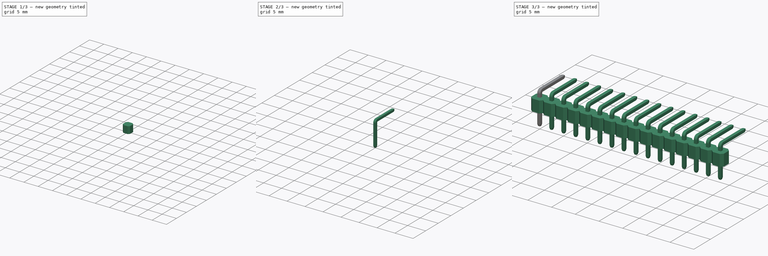
[diagram: build sequence overview — one tinted view per stage of 3, left to right]
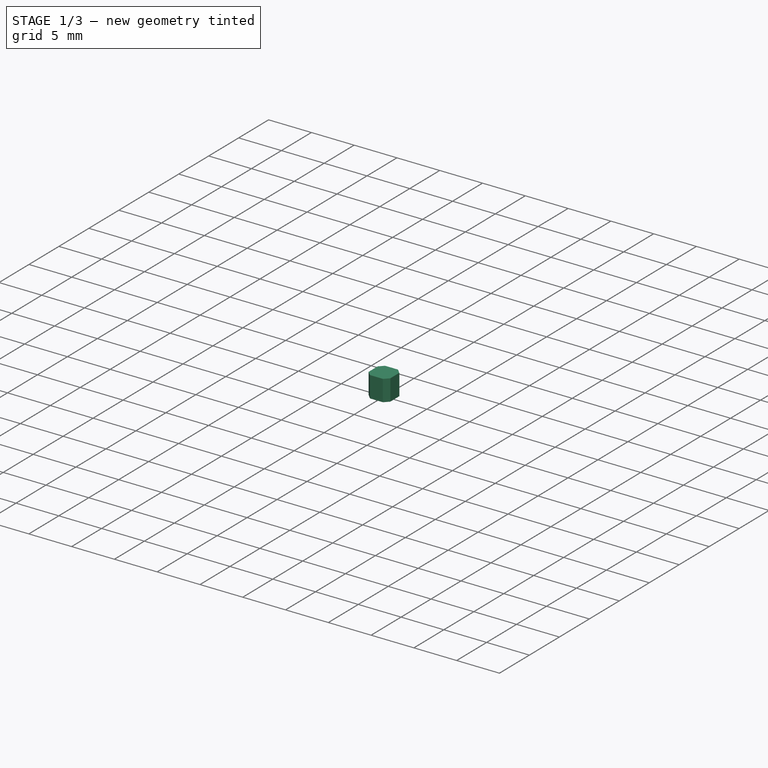
[diagram: stage 1 of 3 — iso view after this stage's code; geometry added in this stage tinted green]
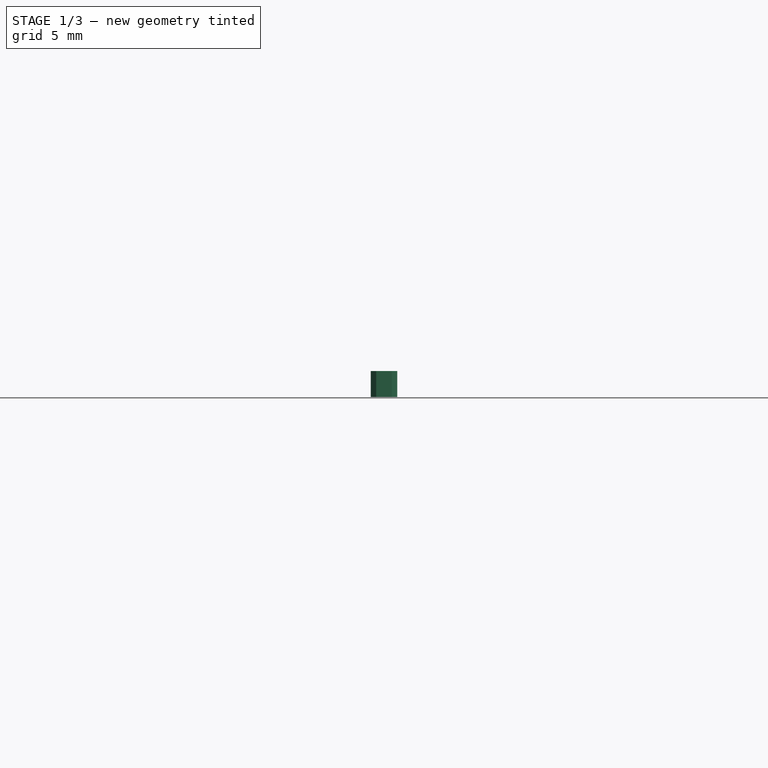
[diagram: stage 1 of 3 — front view after this stage's code; geometry added in this stage tinted green]
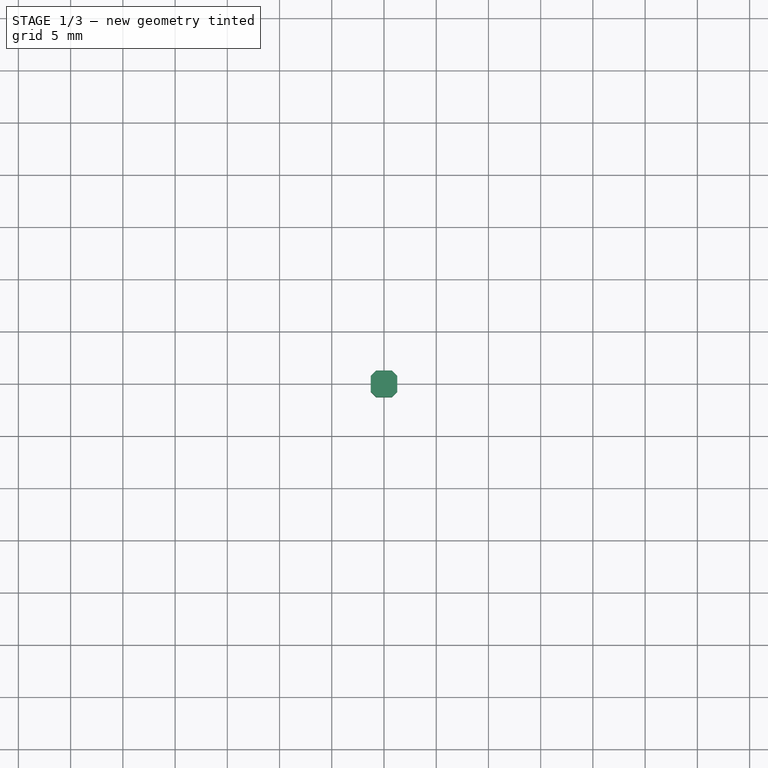
[diagram: stage 1 of 3 — top view after this stage's code; geometry added in this stage tinted green]
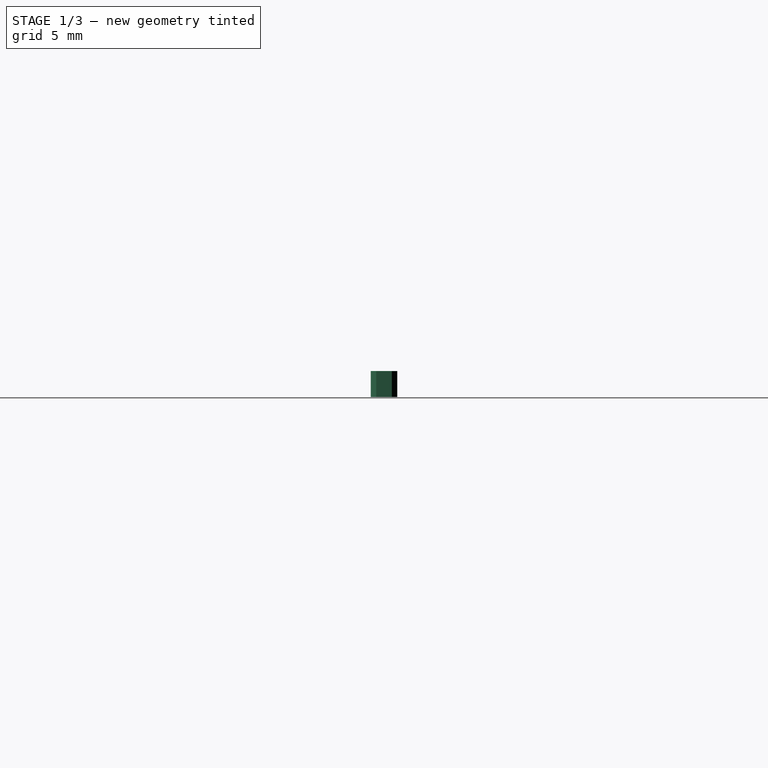
[diagram: stage 1 of 3 — right view after this stage's code; geometry added in this stage tinted green]
FCSTD DOCUMENT  (FreeCAD 1.0R39285 (Git))
Label: header_R1
License: All rights reserved
LicenseURL: https://en.wikipedia.org/wiki/All_rights_reserved
objects: Sketcher::SketchObject×4, PartDesign::Chamfer×2, PartDesign::Fillet×2, PartDesign::Body×2, PartDesign::Pad×1, PartDesign::SubShapeBinder×1, PartDesign::AdditivePipe×1, App::Part×1, Part::FeaturePython×1
note: 29 computed .brp shape members not serialized (recipe doc carries the construction recipe); baked Part::Feature solids carry a one-line shape summary decoded from their .brp

FEATURE [Sketcher::SketchObject] Sketch
  ArcFitTolerance = 1e-06
  AttachmentSupport = -> [XY_Plane]
  FullyConstrained = true
  MakeInternals = false
  MapMode = 5
  sketch-geometry (17):
    g0: LineSegment StartX=-0.75 StartY=-1.27 StartZ=0 EndX=0.75 EndY=-1.27 EndZ=0
    g1: LineSegment StartX=1.27 StartY=-0.75 StartZ=0 EndX=1.27 EndY=0.75 EndZ=0
    g2: LineSegment StartX=0.75 StartY=1.27 StartZ=0 EndX=-0.75 EndY=1.27 EndZ=0
    g3: LineSegment StartX=-1.27 StartY=0.75 StartZ=0 EndX=-1.27 EndY=-0.75 EndZ=0
    g4: GeomPoint [constr] X=0 Y=0 Z=0
    g5: ArcOfCircle [constr] CenterX=-0.75 CenterY=0.75 CenterZ=0 NormalX=0 NormalY=0 NormalZ=1 AngleXU=0 Radius=0.52 StartAngle=1.5708 EndAngle=3.14159
    g6: GeomPoint [constr] X=-1.27 Y=1.27 Z=0
    g7: LineSegment StartX=-0.75 StartY=1.27 StartZ=0 EndX=-1.27 EndY=0.75 EndZ=0
    g8: ArcOfCircle [constr] CenterX=0.75 CenterY=0.75 CenterZ=0 NormalX=0 NormalY=0 NormalZ=1 AngleXU=0 Radius=0.52 StartAngle=3.9294e-12 EndAngle=1.5708
    g9: GeomPoint [constr] X=1.27 Y=1.27 Z=0
    g10: LineSegment StartX=1.27 StartY=0.75 StartZ=0 EndX=0.75 EndY=1.27 EndZ=0
    g11: ArcOfCircle [constr] CenterX=0.75 CenterY=-0.75 CenterZ=0 NormalX=0 NormalY=0 NormalZ=1 AngleXU=0 Radius=0.52 StartAngle=4.71239 EndAngle=6.28319
    g12: GeomPoint [constr] X=1.27 Y=-1.27 Z=0
    g13: LineSegment StartX=0.75 StartY=-1.27 StartZ=0 EndX=1.27 EndY=-0.75 EndZ=0
    g14: ArcOfCircle [constr] CenterX=-0.75 CenterY=-0.75 CenterZ=0 NormalX=0 NormalY=0 NormalZ=1 AngleXU=0 Radius=0.52 StartAngle=3.14159 EndAngle=4.71239
    g15: GeomPoint [constr] X=-1.27 Y=-1.27 Z=0
    g16: LineSegment StartX=-1.27 StartY=-0.75 StartZ=0 EndX=-0.75 EndY=-1.27 EndZ=0
  constraints (36):
    c: Horizontal(g0)
    c: Horizontal(g2)
    c: Vertical(g1)
    c: Vertical(g3)
    c: Symmetric(g9,g15,g4)
    c: Distance(g12,g15) = 2.54
    c: Distance(g15,g6) = 2.54
    c: Coincident(g4,g-1)
    c: PointOnObject(g6,g3)
    c: PointOnObject(g6,g2)
    c: Tangent(g3,g5) = -1.5708
    c: Tangent(g2,g5) = -1.5708
    c: Coincident(g7,g3)
    c: Coincident(g7,g2)
    c: PointOnObject(g9,g2)
    c: PointOnObject(g9,g1)
    c: Tangent(g2,g8) = -1.5708
    c: Tangent(g1,g8) = -1.5708
    c: Coincident(g10,g2)
    c: Coincident(g10,g1)
    c: PointOnObject(g12,g1)
    c: PointOnObject(g12,g0)
    c: Tangent(g1,g11) = -1.5708
    c: Tangent(g0,g11) = -1.5708
    c: Coincident(g13,g1)
    c: Coincident(g13,g0)
    c: PointOnObject(g15,g3)
    c: PointOnObject(g15,g0)
    c: Tangent(g3,g14) = -1.5708
    c: Tangent(g0,g14) = -1.5708
    c: Coincident(g16,g3)
    c: Coincident(g16,g0)
    c: Equal(g16,g7)
    c: Equal(g7,g10)
    c: Equal(g10,g13)
    c: DistanceY(g1,g1) = 1.5
FEATURE [PartDesign::Pad] Pad
  Direction = (0,0,1)
  Length = 2.5
  Length2 = 10
  Profile = -> Sketch
  ReferenceAxis = -> Sketch [N_Axis]
  Refine = true
  Suppressed = false
  Type = 0
FEATURE [PartDesign::Body] Body001  label="Conductor"
  AllowCompound = false
  Group = -> [Sketch002,Binder,Sketch003,AdditivePipe,Chamfer,Chamfer001,Fillet]
  Origin = -> Origin001
  Tip = -> Fillet
FEATURE [PartDesign::Fillet] Fillet001
  Base = -> Pad [Edge4,Edge7,Edge10,Edge13,Edge16,Edge19,Edge22,Edge24,Edge3,Edge23,Edge21,Edge18,Edge15,Edge12,Edge9,Edge6,Edge2,Edge5,Edge8,Face5,Edge14,Edge17,Edge20,Edge1]
  BaseFeature = -> Pad
  Radius = 0.03
  Refine = true
  SupportTransform = false
  Suppressed = false
  UseAllEdges = false
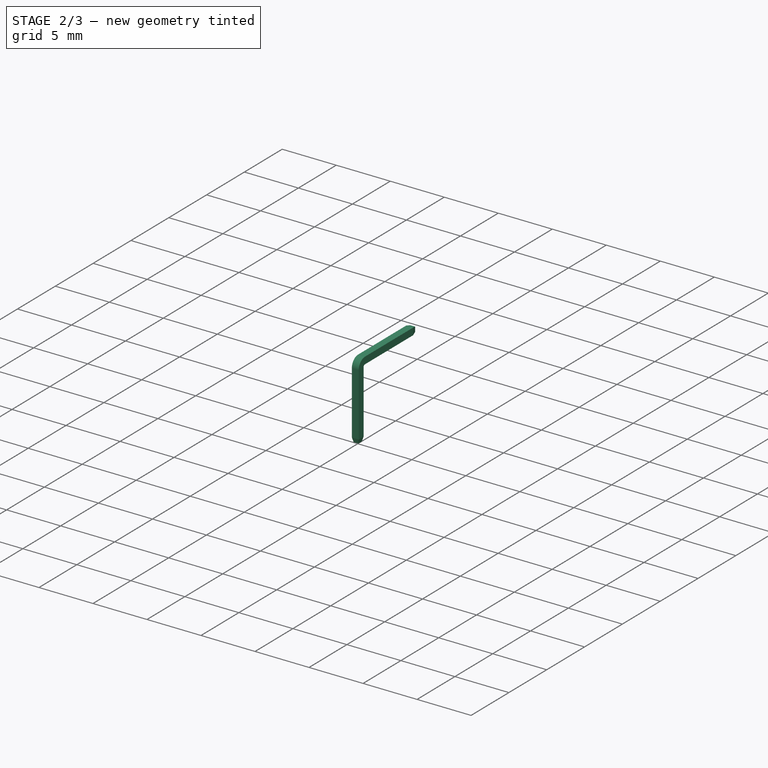
[diagram: stage 2 of 3 — iso view after this stage's code; geometry added in this stage tinted green]
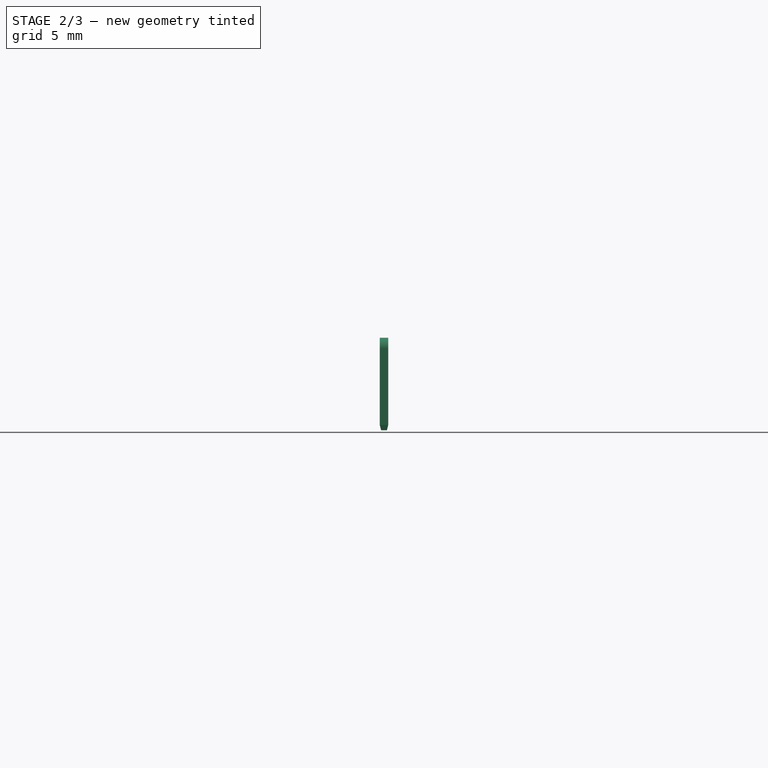
[diagram: stage 2 of 3 — front view after this stage's code; geometry added in this stage tinted green]
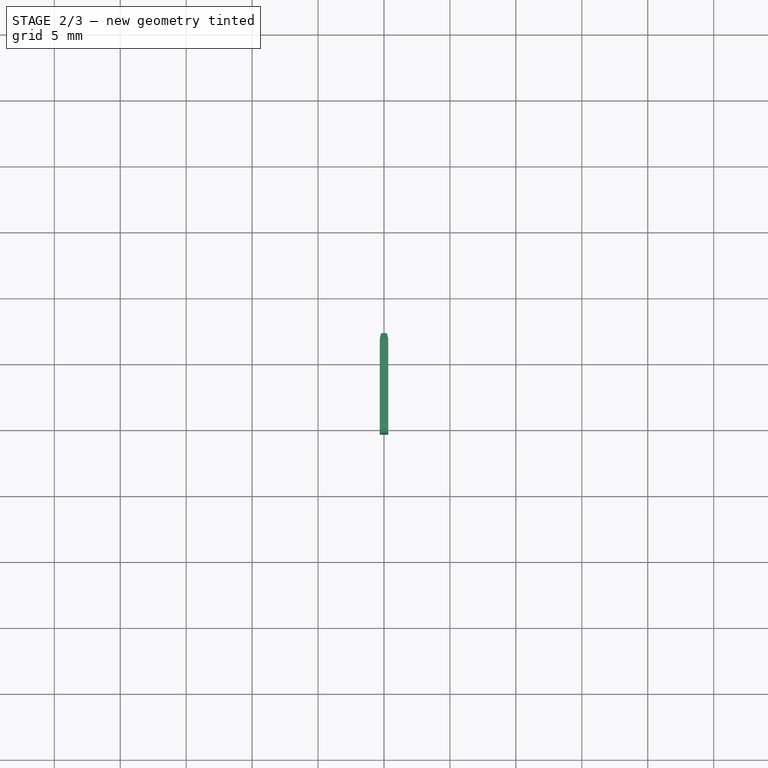
[diagram: stage 2 of 3 — top view after this stage's code; geometry added in this stage tinted green]
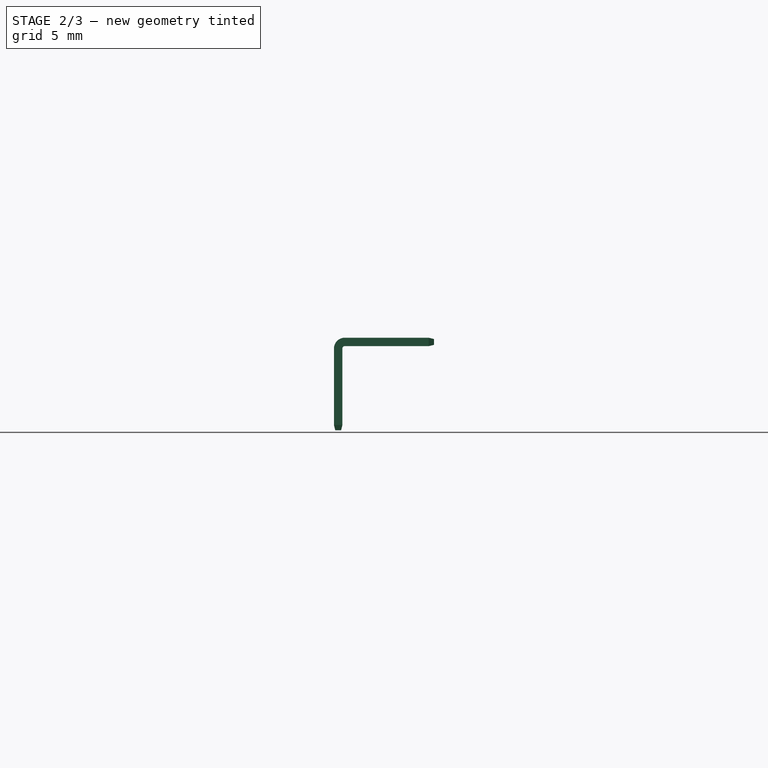
[diagram: stage 2 of 3 — right view after this stage's code; geometry added in this stage tinted green]
FEATURE [Sketcher::SketchObject] Sketch001
  ArcFitTolerance = 1e-06
  AttachmentSupport = -> [YZ_Plane]
  FullyConstrained = true
  MakeInternals = false
  MapMode = 5
  Placement = pos=(0,0,0) rot=(0.57735,0.57735,0.57735;2.0944rad)
FEATURE [PartDesign::SubShapeBinder] Binder
  BindCopyOnChange = 0
  BindMode = 0
  ClaimChildren = false
  Context = -> Body001 [Binder.]
  Fuse = false
  MakeFace = true
  OffsetFill = false
  OffsetIntersection = false
  OffsetJoinType = 0
  OffsetOpenResult = false
  PartialLoad = false
  Refine = true
  Relative = true
  Support = -> [Body[Pad.Face3,Pad.Face4]]
  _Version = 2
FEATURE [Sketcher::SketchObject] Sketch002
  ArcFitTolerance = 1e-06
  AttachmentSupport = -> [YZ_Plane001]
  ExternalGeometry = -> [Binder]
  FullyConstrained = true
  MakeInternals = false
  MapMode = 5
  Placement = pos=(0,0,0) rot=(0.57735,0.57735,0.57735;2.0944rad)
  sketch-geometry (3):
    g0: LineSegment StartX=0 StartY=-3 StartZ=0 EndX=0 EndY=3.2 EndZ=0
    g1: ArcOfCircle CenterX=0.5 CenterY=3.2 CenterZ=0 NormalX=0 NormalY=0 NormalZ=1 AngleXU=0 Radius=0.5 StartAngle=1.5708 EndAngle=3.14159
    g2: LineSegment StartX=0.5 StartY=3.7 StartZ=0 EndX=7.27 EndY=3.7 EndZ=0
  constraints (9):
    c: PointOnObject(g0,g-2)
    c: PointOnObject(g0,g-2)
    c: Horizontal(g2)
    c: Tangent(g2,g1) = 1.5708
    c: Tangent(g1,g0) = 1.5708
    c: DistanceX(g-3,g2) = 6
    c: DistanceY(g0,g-3) = 3
    c: DistanceY(g-3,g1) = 1.2
    c: DistanceY(g1,g1) = 0.5
FEATURE [Sketcher::SketchObject] Sketch003
  ArcFitTolerance = 1e-06
  AttachmentSupport = -> [XY_Plane001]
  FullyConstrained = true
  MakeInternals = false
  MapMode = 5
  sketch-geometry (5):
    g0: LineSegment StartX=-0.32 StartY=-0.32 StartZ=0 EndX=0.32 EndY=-0.32 EndZ=0
    g1: LineSegment StartX=0.32 StartY=-0.32 StartZ=0 EndX=0.32 EndY=0.32 EndZ=0
    g2: LineSegment StartX=0.32 StartY=0.32 StartZ=0 EndX=-0.32 EndY=0.32 EndZ=0
    g3: LineSegment StartX=-0.32 StartY=0.32 StartZ=0 EndX=-0.32 EndY=-0.32 EndZ=0
    g4: GeomPoint [constr] X=0 Y=0 Z=0
  constraints (12):
    c: Coincident(g0,g1)
    c: Coincident(g1,g2)
    c: Coincident(g2,g3)
    c: Coincident(g3,g0)
    c: Horizontal(g0)
    c: Horizontal(g2)
    c: Vertical(g1)
    c: Vertical(g3)
    c: Symmetric(g2,g0,g4)
    c: Distance(g1,g3) = 0.64
    c: Distance(g0,g2) = 0.64
    c: Coincident(g4,g-1)
FEATURE [PartDesign::AdditivePipe] AdditivePipe
  AuxilleryCurvelinear = true
  AuxillerySpineTangent = false
  Binormal = (0,0,0)
  Mode = 0
  Profile = -> Sketch003
  Refine = true
  Spine = -> Sketch002
  SpineTangent = false
  Suppressed = false
  Transformation = 0
  Transition = 0
FEATURE [PartDesign::Chamfer] Chamfer
  Angle = 45
  Base = -> AdditivePipe [Edge20,Edge21,Edge22,Edge2,Edge1,Edge3,Edge4]
  BaseFeature = -> AdditivePipe
  ChamferType = 1
  FlipDirection = false
  Refine = true
  Size = 0.1
  Size2 = 0.4
  SupportTransform = false
  Suppressed = false
  UseAllEdges = false
FEATURE [PartDesign::Chamfer] Chamfer001
  Angle = 45
  Base = -> Chamfer [Edge31]
  BaseFeature = -> Chamfer
  ChamferType = 1
  FlipDirection = false
  Refine = true
  Size = 0.4
  Size2 = 0.1
  SupportTransform = false
  Suppressed = false
  UseAllEdges = false
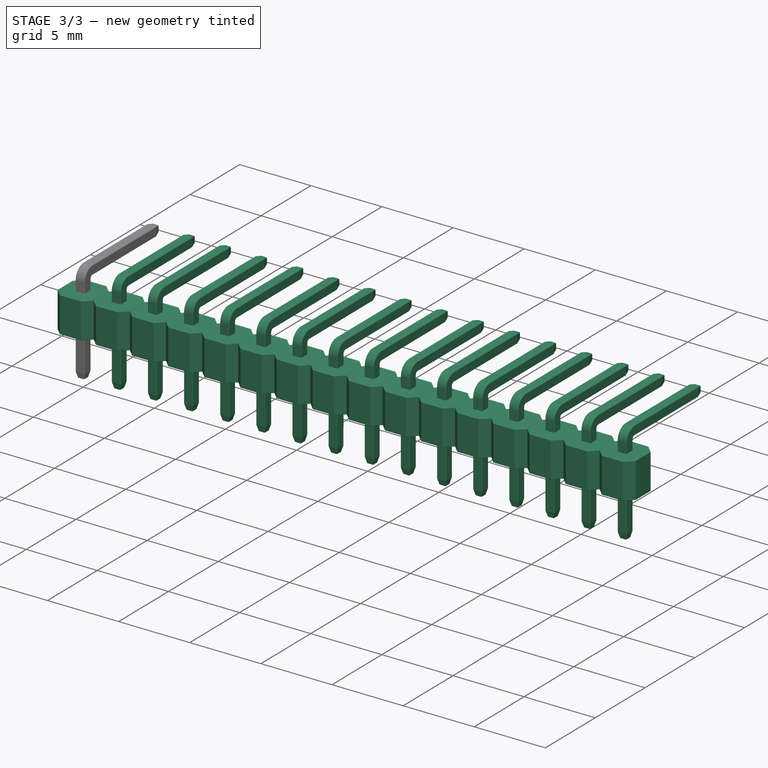
[diagram: stage 3 of 3 — iso view after this stage's code; geometry added in this stage tinted green]
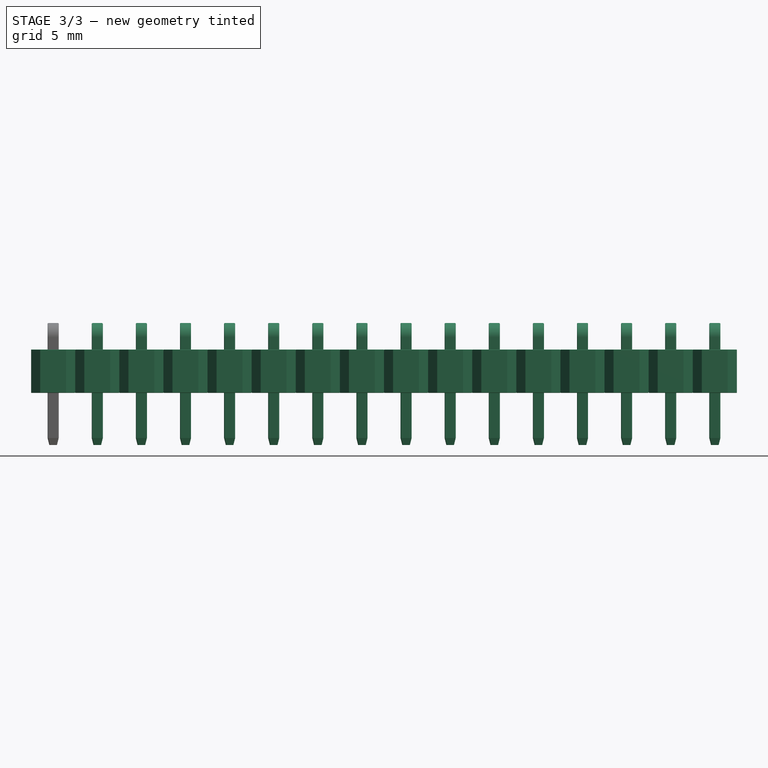
[diagram: stage 3 of 3 — front view after this stage's code; geometry added in this stage tinted green]
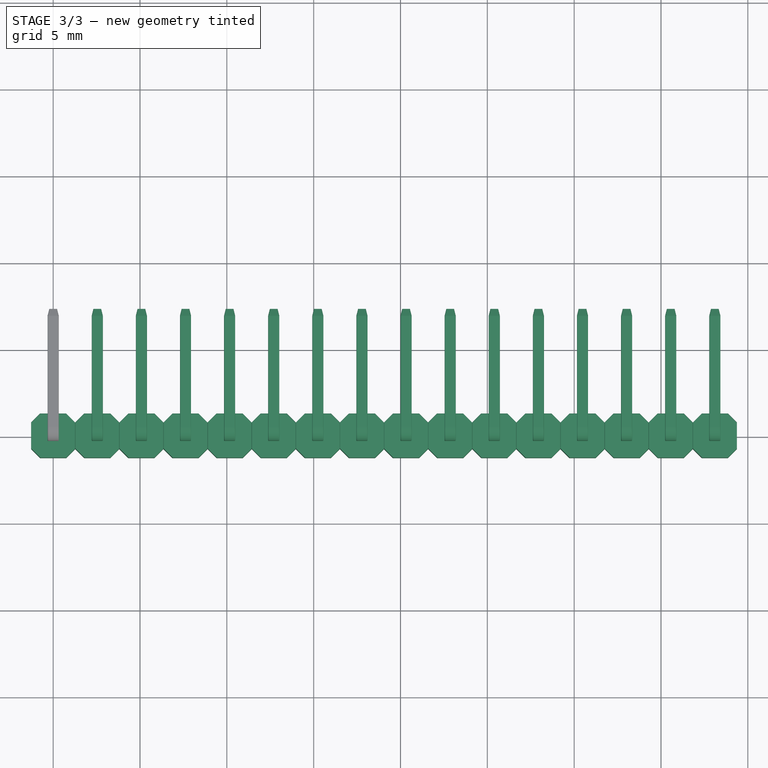
[diagram: stage 3 of 3 — top view after this stage's code; geometry added in this stage tinted green]
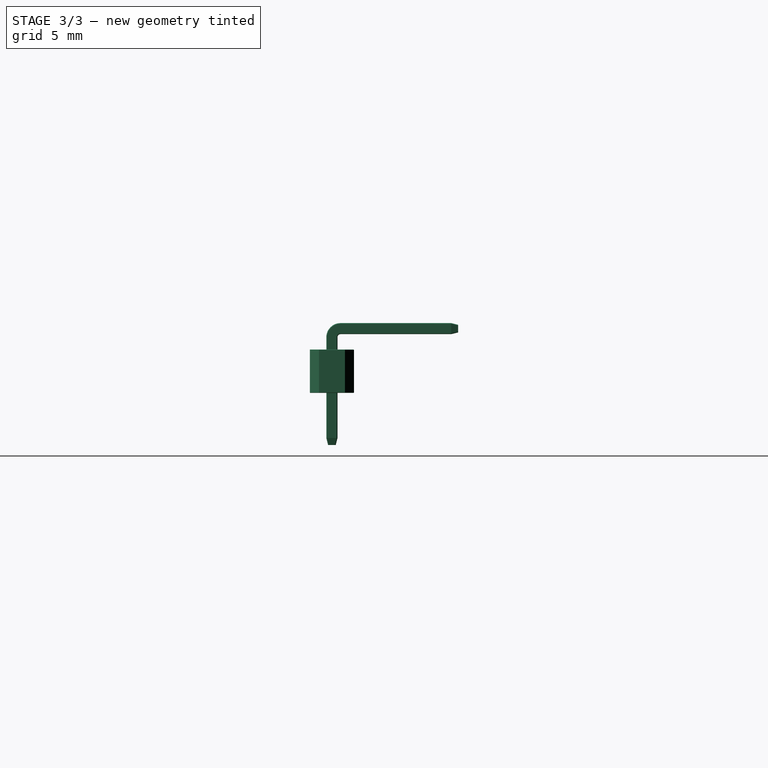
[diagram: stage 3 of 3 — right view after this stage's code; geometry added in this stage tinted green]
FEATURE [PartDesign::Fillet] Fillet
  Base = -> Chamfer001 [Edge15,Edge18,Edge11,Edge8,Edge7,Edge27,Edge5,Edge24,Edge30,Edge38,Edge36,Edge32]
  BaseFeature = -> Chamfer001
  Radius = 0.05
  Refine = true
  SupportTransform = false
  Suppressed = false
  UseAllEdges = false
FEATURE [PartDesign::Body] Body  label="Plastic"
  AllowCompound = false
  Group = -> [Sketch,Pad,Sketch001,Fillet001]
  Origin = -> Origin
  Tip = -> Fillet001
FEATURE [App::Part] Part  label="Section"
  Group = -> [Body001,Body]
  Origin = -> Origin002
FEATURE [Part::FeaturePython] Array  # Draft array (typed FeaturePython)
  AlwaysSyncPlacement = false
  Angle = 360
  ArrayType = 0
  Axis = (0,0,1)
  Base = -> Part
  Center = (0,0,0)
  Count = 16
  ExpandArray = false
  Fuse = false
  IntervalAxis = (0,0,0)
  IntervalX = (2.54,0,0)
  IntervalY = (0,100,0)
  IntervalZ = (0,0,100)
  NumberCircles = 3
  NumberPolar = 5
  NumberX = 16
  NumberY = 1
  NumberZ = 1
  PlacementList = 16 placements: arithmetic series from (0,0,0) step (2.54,0,0) to (38.1,0,0)
  RadialDistance = 50
  ScaleList = (16) [(1,1,1),(1,1,1),(1,1,1),(1,1,1),(1,1,1),(1,1,1),(1,1,1),(1,1,1),(1,1,1),(1,1,1),(1,1,1),(1,1,1),(1,1,1),(1,1,1),(1,1,1),(1,1,1)]
  Symmetry = 1
  TangentialDistance = 25
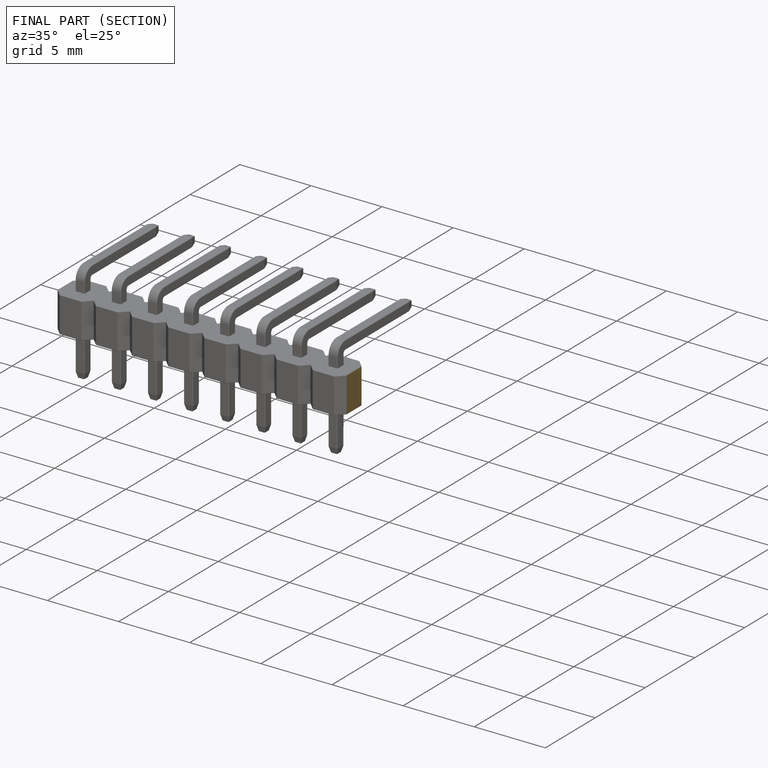
[diagram: finished part — half-section view (interior)]
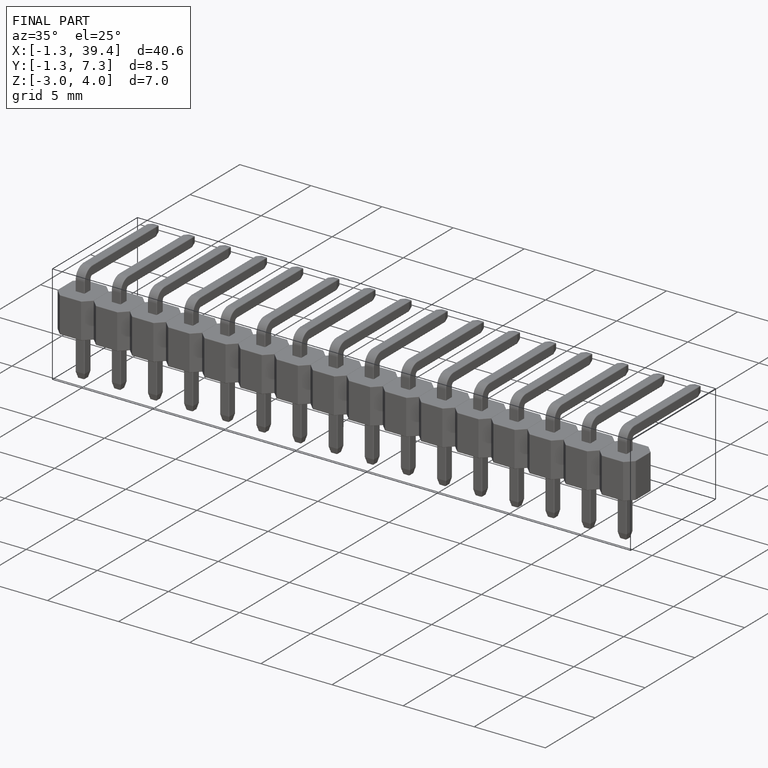
[diagram: finished part — iso view with bounding-box wireframe]
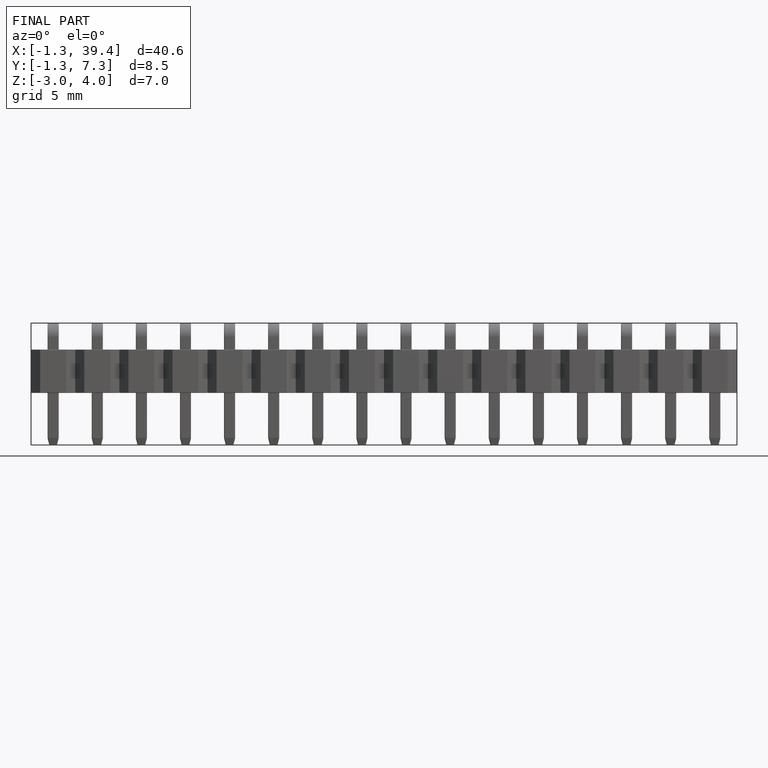
[diagram: finished part — front view with bounding-box wireframe]
